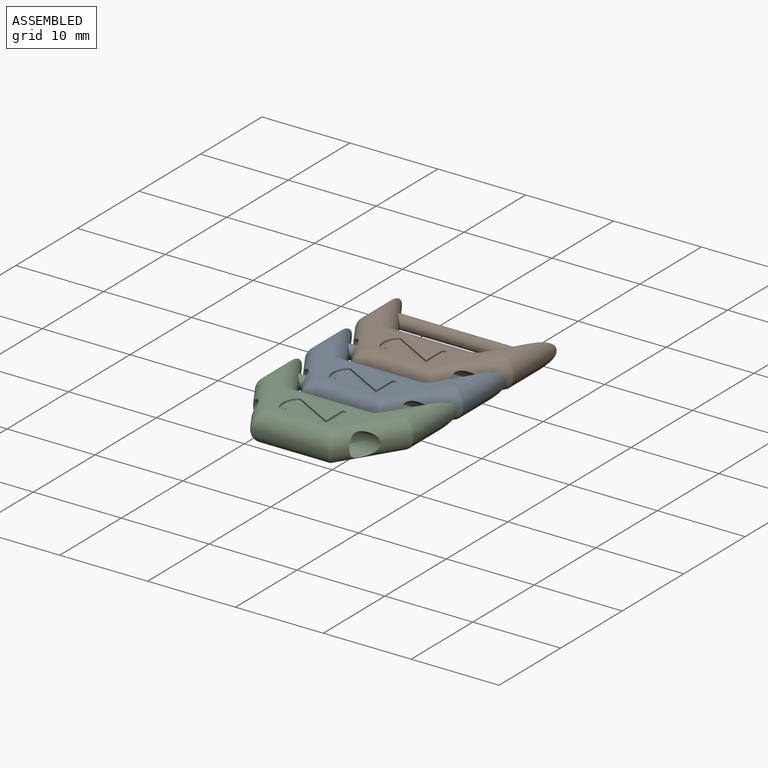
[diagram: assembled view]
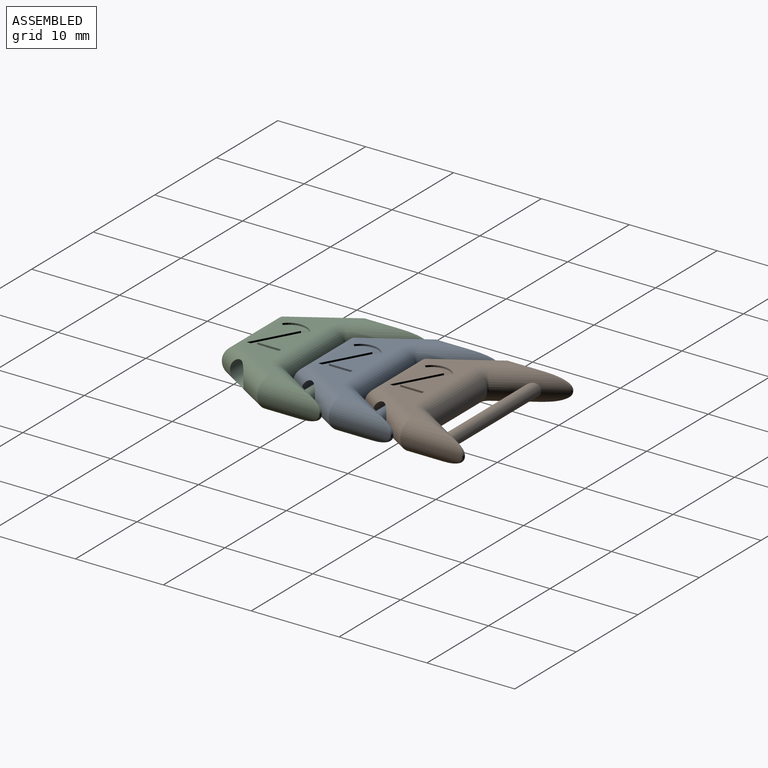
[diagram: assembled view, second angle]
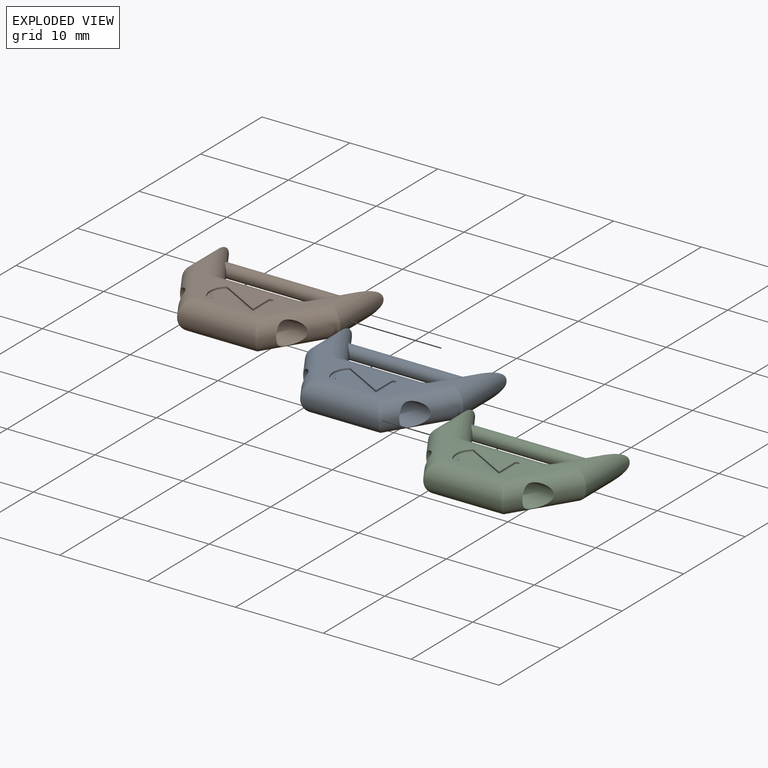
[diagram: exploded view]
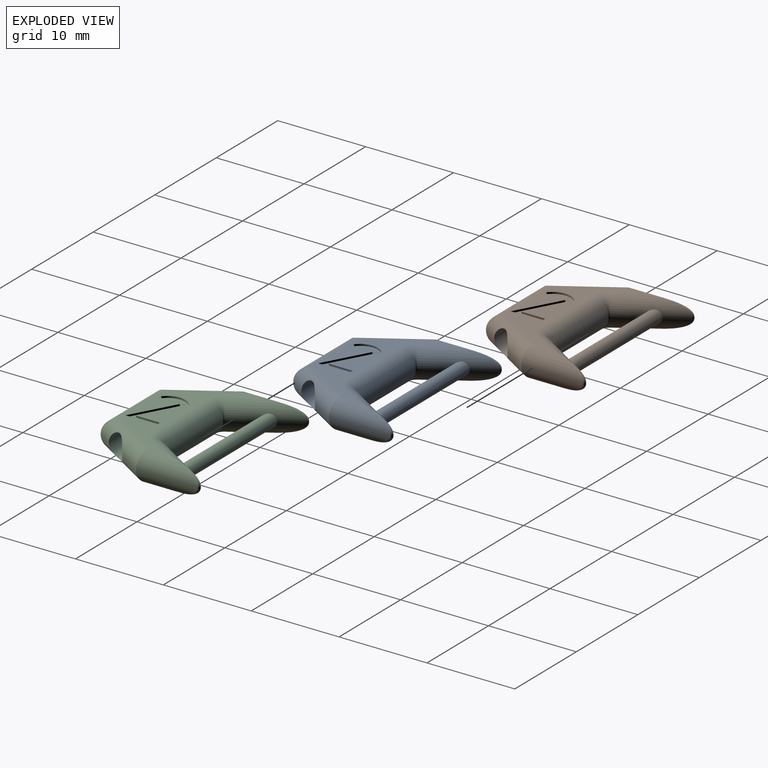
[diagram: exploded view, second angle]
ASSEMBLY  parts=3 mates=2
PART A: 65 faces, bbox 20.1x14.9x3.5 mm
  f0: plane 14.6x7.27mm, normal (0,0,1), area 39.9mm2, adj f3,f4,f27,f28,f31,f32,f35,f36
  f1: plane 2.36x1.48mm, normal (-0.85,0.53,0), area 0.3mm2, adj f3,f5,f21,f55
  f2: plane 2.66x1.66mm, normal (0.85,0.53,0), area 0.3mm2, adj f4,f6,f23,f55
  f3: cylinder r=1.7mm len=7.42mm, axis (0.53,0.85,0), area 14.5mm2, adj f0,f1,f13,f33,f36,f55
  f4: cylinder r=1.7mm len=7.42mm, axis (0.53,-0.85,0), area 14.5mm2, adj f0,f2,f15,f37,f39,f55
  f5: cylinder r=1.7mm len=7.42mm, axis (-0.53,-0.85,0), area 14.5mm2, adj f1,f13,f17,f48,f51,f55
  f6: cylinder r=1.7mm len=7.42mm, axis (-0.53,0.85,0), area 14.5mm2, adj f2,f15,f17,f50,f53,f55
  f7: plane 2.73x1.71mm, normal (-0.85,-0.53,0), area 0.3mm2, adj f25,f32,f45,f54
  f8: plane 1.63x1.02mm, normal (0.85,-0.53,0), area 0.2mm2, adj f19,f27,f42,f54
  f9: plane 1.63x1.02mm, normal (-0.85,-0.53,0), area 0.2mm2, adj f18,f32,f45,f54
  f10: plane 8.78x0.1mm, normal (0,-1,0), area 0.9mm2, adj f18,f19,f28,f41
  f11: plane 2.73x1.71mm, normal (0.85,-0.53,0), area 0.3mm2, adj f20,f27,f42,f54
  f12: plane 6.95x0.1mm, normal (1,0,0), area 0.7mm2, adj f20,f21,f31,f46
  f13: plane 2.66x1.66mm, normal (-0.85,0.53,0), area 0.3mm2, adj f3,f5,f22,f55
  f14: plane 8.78x0.1mm, normal (0,1,0), area 0.9mm2, adj f22,f23,f38,f52
  f15: plane 2.36x1.48mm, normal (0.85,0.53,0), area 0.3mm2, adj f4,f6,f24,f55
  f16: plane 6.95x0.1mm, normal (-1,0,0), area 0.7mm2, adj f24,f25,f35,f49
  f17: plane 14.6x7.27mm, normal (0,0,-1), area 46.3mm2, adj f5,f6,f41,f42,f45,f46,f49,f51
  f18: cylinder r=0.2mm len=0.17mm, axis (0,0,-1), area 0mm2, adj f9,f10,f30,f43
  f19: cylinder r=0.2mm len=0.17mm, axis (0,0,1), area 0mm2, adj f8,f10,f26,f40
  f20: cylinder r=0.2mm len=0.11mm, axis (0,0,-1), area 0mm2, adj f11,f12,f29,f44
  f21: cylinder r=0.2mm len=0.37mm, axis (0,0,1), area 0.1mm2, adj f1,f12,f33,f48
  f22: cylinder r=0.2mm len=0.17mm, axis (0,0,-1), area 0mm2, adj f13,f14,f36,f51
  f23: cylinder r=0.2mm len=0.17mm, axis (0,0,-1), area 0mm2, adj f2,f14,f39,f53
  f24: cylinder r=0.2mm len=0.37mm, axis (0,0,-1), area 0.1mm2, adj f15,f16,f37,f50
  f25: cylinder r=0.2mm len=0.11mm, axis (0,0,-1), area 0mm2, adj f7,f16,f34,f47
  f26: bspline ~1.93x1.7mm, area 0.4mm2, adj f19,f27,f28
  f27: cylinder r=1.7mm len=7.96mm, axis (-0.53,-0.85,0), area 17.5mm2, adj f0,f8,f11,f26,f29,f54
  f28: cylinder r=1.7mm len=8.78mm, axis (-1,0,0), area 21.8mm2, adj f0,f10,f26,f30
  f29: bspline ~1.92x1.7mm, area 0.2mm2, adj f20,f27,f31
  f30: bspline ~1.93x1.7mm, area 0.4mm2, adj f18,f28,f32
  f31: cylinder r=1.7mm len=6.95mm, axis (0,-1,0), area 13.1mm2, adj f0,f12,f29,f33
  f32: cylinder r=1.7mm len=7.96mm, axis (-0.53,0.85,0), area 17.5mm2, adj f0,f7,f9,f30,f34,f54
  f33: bspline ~5.93x2.19mm, area 1.5mm2, adj f3,f21,f31
  f34: bspline ~1.92x1.7mm, area 0.2mm2, adj f25,f32,f35
  f35: cylinder r=1.7mm len=6.95mm, axis (0,1,0), area 13.1mm2, adj f0,f16,f34,f37
  f36: torus R=1.9mm, axis (0,0,1), area 2.2mm2, adj f0,f3,f22,f38
  f37: bspline ~5.93x2.19mm, area 1.5mm2, adj f4,f24,f35
  f38: cylinder r=1.7mm len=8.78mm, axis (1,0,0), area 23.4mm2, adj f0,f14,f36,f39
  f39: torus R=1.9mm, axis (0,0,1), area 2.2mm2, adj f0,f4,f23,f38
  f40: bspline ~1.93x1.7mm, area 0.4mm2, adj f19,f41,f42
  f41: cylinder r=1.7mm len=8.78mm, axis (1,0,0), area 21.8mm2, adj f10,f17,f40,f43
  f42: cylinder r=1.7mm len=7.96mm, axis (0.53,0.85,0), area 17.5mm2, adj f8,f11,f17,f40,f44,f54
  f43: bspline ~1.93x1.7mm, area 0.4mm2, adj f18,f41,f45
  f44: bspline ~1.92x1.7mm, area 0.2mm2, adj f20,f42,f46
  f45: cylinder r=1.7mm len=7.96mm, axis (0.53,-0.85,0), area 17.5mm2, adj f7,f9,f17,f43,f47,f54
  f46: cylinder r=1.7mm len=6.95mm, axis (0,1,0), area 13.1mm2, adj f12,f17,f44,f48
  f47: bspline ~1.92x1.7mm, area 0.2mm2, adj f25,f45,f49
  f48: bspline ~5.93x2.19mm, area 1.5mm2, adj f5,f21,f46
  f49: cylinder r=1.7mm len=6.95mm, axis (0,-1,0), area 13.1mm2, adj f16,f17,f47,f50
  f50: bspline ~5.93x2.19mm, area 1.5mm2, adj f6,f24,f49
  f51: torus R=1.9mm, axis (0,0,1), area 2.2mm2, adj f5,f17,f22,f52
  f52: cylinder r=1.7mm len=8.78mm, axis (-1,0,0), area 23.4mm2, adj f14,f17,f51,f53
  f53: torus R=1.9mm, axis (0,0,1), area 2.2mm2, adj f6,f17,f23,f52
  f54: cylinder r=1.35mm len=14.52mm, axis (1,0,0), area 103.3mm2, adj f7,f8,f9,f11,f27,f32,f42,f45
  f55: cylinder r=0.75mm len=14.31mm, axis (-1,0,0), area 63.8mm2, adj f1,f2,f3,f4,f5,f6,f13,f15
  f56: plane 4.8x2.65mm, normal (-0.48,-0.88,0), area 1.1mm2, adj f0,f57,f63,f64
  f57: cylinder r=2mm len=3.2mm, axis (0,0,1), area 0.7mm2, adj f0,f56,f58,f64
  f58: plane 0.4x0.38mm, normal (-0.72,0.69,0), area 0.1mm2, adj f0,f57,f59,f64
  f59: cylinder r=1.2mm len=2.02mm, axis (0,0,1), area 0.5mm2, adj f0,f58,f60,f64
  f60: plane 4.92x2.71mm, normal (0.48,0.88,0), area 1.1mm2, adj f0,f59,f61,f64
  f61: plane 3.56x0.2mm, normal (-1,0,0), area 0.7mm2, adj f0,f60,f62,f64
  f62: plane 0.5x0.2mm, normal (0,-1,0), area 0.1mm2, adj f0,f61,f63,f64
  f63: plane 2.71x0.2mm, normal (1,0,0), area 0.5mm2, adj f0,f56,f62,f64
  f64: plane 6.1x3.56mm, normal (0,0,1), area 6.3mm2, adj f56,f57,f58,f59,f60,f61,f62,f63
PART B: same geometry as A
PART C: same geometry as A
PLACE A t=(5.92,-2.95,2.1)mm
PLACE B t=(5.92,5.18,2.1)mm
PLACE C t=(5.92,-11.08,2.1)mm
MATE revolute B.f54 <-> A.f55  axis (1,0,0) through (5.92,8.25,2.1)mm
MATE revolute A.f54 <-> C.f55  axis (1,0,0) through (5.92,0.12,2.1)mm
